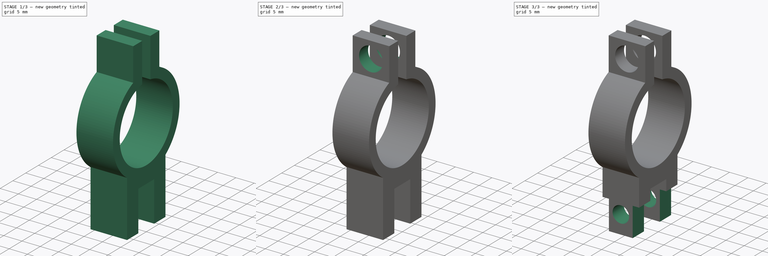
[diagram: build sequence overview — one tinted view per stage of 3, left to right]
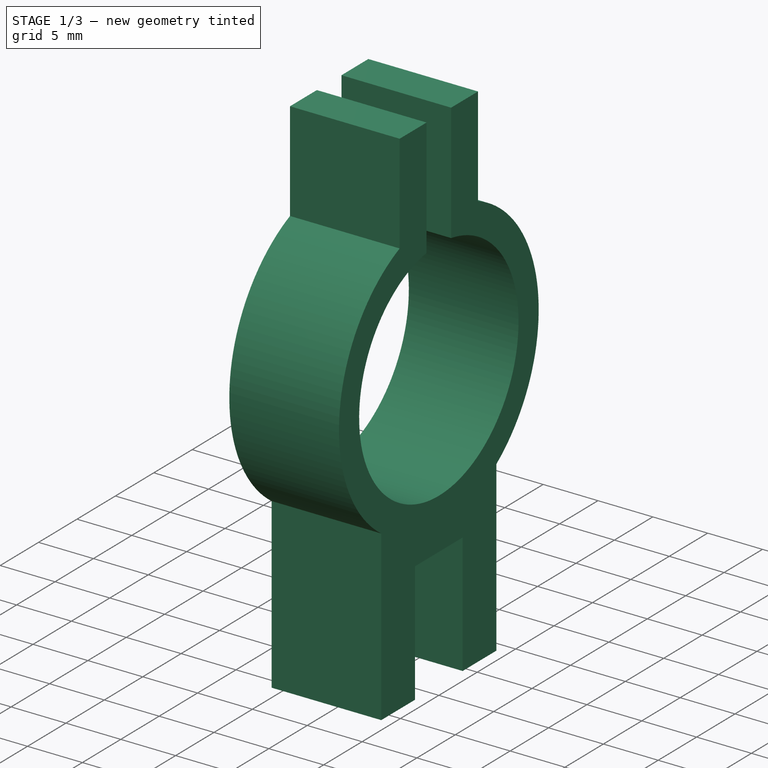
[diagram: stage 1 of 3 — iso view after this stage's code; geometry added in this stage tinted green]
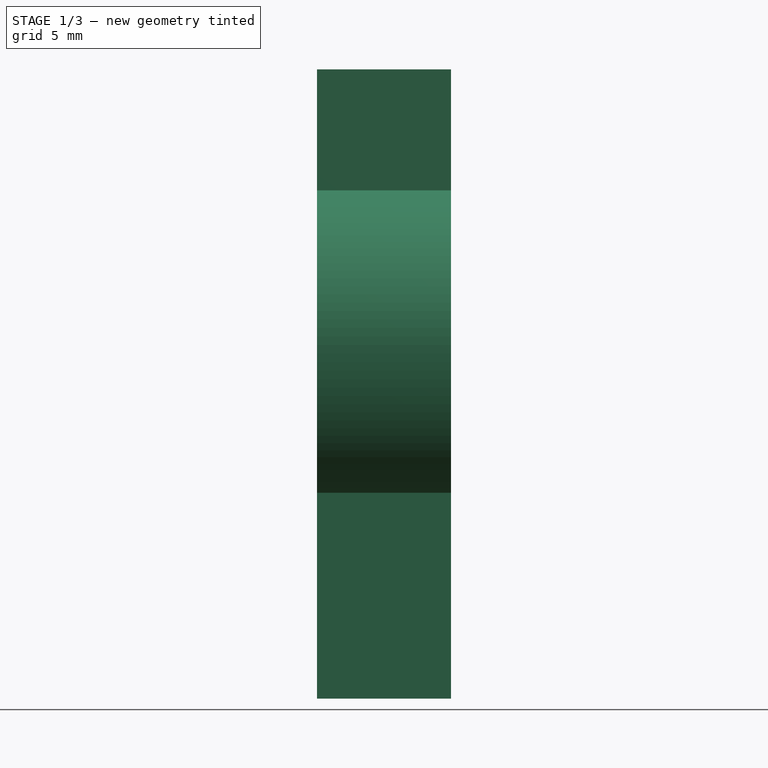
[diagram: stage 1 of 3 — front view after this stage's code; geometry added in this stage tinted green]
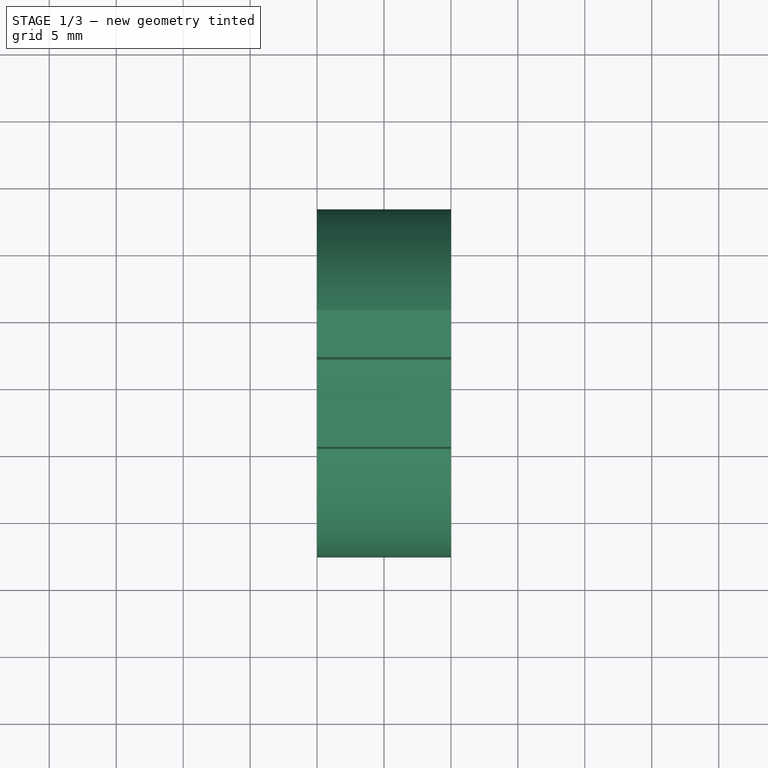
[diagram: stage 1 of 3 — top view after this stage's code; geometry added in this stage tinted green]
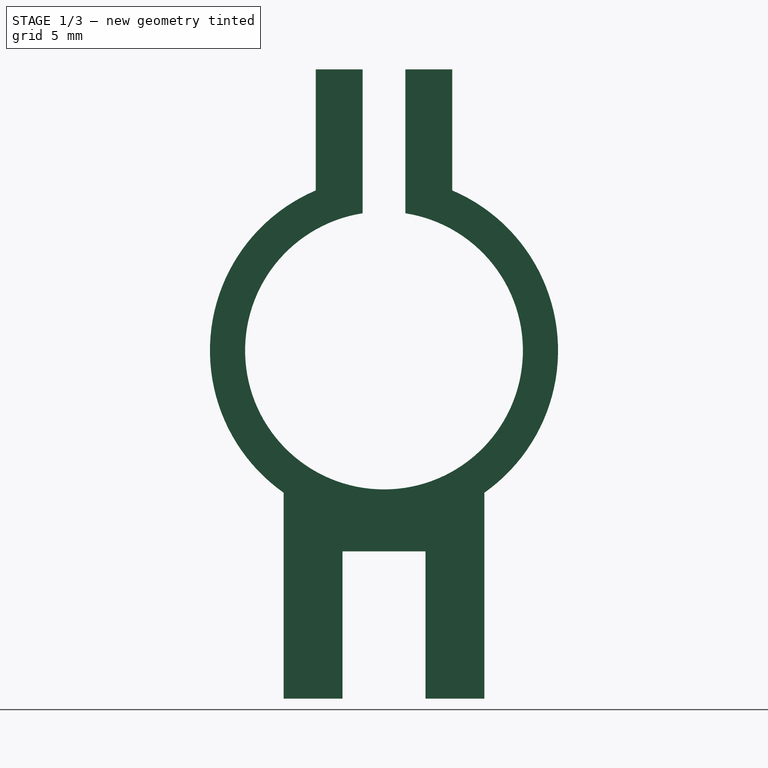
[diagram: stage 1 of 3 — right view after this stage's code; geometry added in this stage tinted green]
FCSTD DOCUMENT  (FreeCAD 0.21R33771 (Git))
Label: Syring holder V1
License: All rights reserved
LicenseURL: https://en.wikipedia.org/wiki/All_rights_reserved
objects: Sketcher::SketchObject×5, PartDesign::Pocket×4, PartDesign::Pad×1, PartDesign::Body×1
note: 16 computed .brp shape members not serialized (recipe doc carries the construction recipe); baked Part::Feature solids carry a one-line shape summary decoded from their .brp

FEATURE [Sketcher::SketchObject] Sketch
  FullyConstrained = true
  Placement = pos=(0,0,0) rot=(0.57735,0.57735,0.57735;2.0944rad)
  sketch-geometry (17):
    g0: ArcOfCircle CenterX=0 CenterY=0 CenterZ=0 NormalX=0 NormalY=0 NormalZ=1 AngleXU=0 Radius=10.375 StartAngle=1.72563 EndAngle=7.69915
    g1: ArcOfCircle CenterX=0 CenterY=0 CenterZ=0 NormalX=0 NormalY=0 NormalZ=1 AngleXU=0 Radius=13 StartAngle=5.32735 EndAngle=7.45084
    g2: LineSegment StartX=0 StartY=-10.375 StartZ=0 EndX=0 EndY=-20.625 EndZ=0
    g3: LineSegment StartX=-7.5 StartY=-25.9984 StartZ=0 EndX=-7.5 EndY=-10.6184 EndZ=0
    g4: LineSegment StartX=7.5 StartY=-25.9984 StartZ=0 EndX=7.5 EndY=-10.6184 EndZ=0
    g5: LineSegment StartX=-7.5 StartY=-25.9984 StartZ=0 EndX=7.5 EndY=-25.9984 EndZ=0
    g6: LineSegment StartX=0 StartY=0 StartZ=0 EndX=0 EndY=13 EndZ=0
    g7: LineSegment StartX=0 StartY=20.9978 StartZ=0 EndX=-1.6 EndY=20.9978 EndZ=0
    g8: LineSegment StartX=0 StartY=12.9978 StartZ=0 EndX=0 EndY=20.9978 EndZ=0
    g9: LineSegment StartX=0 StartY=20.9978 StartZ=0 EndX=1.6 EndY=20.9978 EndZ=0
    g10: LineSegment StartX=-1.6 StartY=20.9978 StartZ=0 EndX=-5.1 EndY=20.9978 EndZ=0
    g11: LineSegment StartX=-5.1 StartY=20.9978 StartZ=0 EndX=-5.1 EndY=11.9578 EndZ=0
    g12: LineSegment StartX=1.6 StartY=20.9978 StartZ=0 EndX=5.1 EndY=20.9978 EndZ=0
    g13: LineSegment StartX=5.1 StartY=20.9978 StartZ=0 EndX=5.1 EndY=11.9578 EndZ=0
    g14: ArcOfCircle CenterX=0 CenterY=0 CenterZ=0 NormalX=0 NormalY=0 NormalZ=1 AngleXU=0 Radius=13 StartAngle=1.97394 EndAngle=4.09743
    g15: LineSegment StartX=-1.6 StartY=20.9978 StartZ=0 EndX=-1.6 EndY=10.2509 EndZ=0
    g16: LineSegment StartX=1.6 StartY=20.9978 StartZ=0 EndX=1.6 EndY=10.2509 EndZ=0
  constraints (52):
    c: Coincident(g0,g-1)
    c: Coincident(g1,g0)
    c: PointOnObject(g2,g-2)
    c: Distance(g4) = 15.38
    c: Coincident(g1,g4)
    c: Coincident(g14,g3)
    c: PointOnObject(g2,g0)
    c: Coincident(g5,g3)
    c: Coincident(g5,g4)
    c: Horizontal(g5)
    c: Perpendicular(g5,g4)
    c: Perpendicular(g5,g3)
    c: Equal(g3,g4)
    c: Radius(g1) = 13
    c: Diameter(g0) = 20.75
    c: Distance(g5) = 15
    c: Vertical(g2)
    c: Distance(g2) = 10.25
    c: Coincident(g6,g0)
    c: PointOnObject(g7,g-2)
    c: Coincident(g8,g7)
    c: Horizontal(g7)
    c: Vertical(g8)
    c: Distance(g7) = 1.6
    c: Distance(g8) = 8
    c: Distance(g9) = 1.6
    c: Horizontal(g9)
    c: Coincident(g9,g7)
    c: Coincident(g7,g10)
    c: Horizontal(g10)
    c: Coincident(g10,g11)
    c: Vertical(g11)
    c: PointOnObject(g11,g1)
    c: Distance(g11) = 9.04
    c: Coincident(g12,g13)
    c: Distance(g13) = 9.04
    c: Perpendicular(g13,g12)
    c: Coincident(g12,g9)
    c: PointOnObject(g6,g1)
    c: Distance(g10) = 3.5
    c: Equal(g1,g14)
    c: Coincident(g1,g14)
    c: PointOnObject(g14,g11)
    c: Coincident(g1,g13)
    c: Block(g6)
    c: Distance(g12) = 3.5
    c: Coincident(g15,g10)
    c: Vertical(g15)
    c: Coincident(g16,g12)
    c: Vertical(g16)
    c: Coincident(g0,g16)
    c: Coincident(g0,g15)
FEATURE [PartDesign::Pad] Pad
  Direction = (1,0,0)
  Length = 10
  Length2 = 10
  Placement = pos=(0,0,0) rot=(0.57735,0.57735,0.57735;2.0944rad)
  Profile = -> Sketch
  ReferenceAxis = -> Sketch [N_Axis]
  Type = 0
FEATURE [Sketcher::SketchObject] Sketch003
  ExternalGeometry = -> [Sketch]
  FullyConstrained = true
  MapMode = 5
  Placement = pos=(0,0,0) rot=(0.57735,0.57735,-0.57735;4.18879rad)
  sketch-geometry (6):
    g0: LineSegment StartX=0 StartY=25.9984 StartZ=0 EndX=-3.1 EndY=25.9984 EndZ=0
    g1: LineSegment StartX=-3.1 StartY=25.9984 StartZ=0 EndX=-3.1 EndY=14.9984 EndZ=0
    g2: LineSegment StartX=-3.1 StartY=14.9984 StartZ=0 EndX=0 EndY=14.9984 EndZ=0
    g3: LineSegment StartX=0 StartY=25.9984 StartZ=0 EndX=3.1 EndY=25.9984 EndZ=0
    g4: LineSegment StartX=3.1 StartY=25.9984 StartZ=0 EndX=3.1 EndY=14.9984 EndZ=0
    g5: LineSegment StartX=3.1 StartY=14.9984 StartZ=0 EndX=0 EndY=14.9984 EndZ=0
  constraints (18):
    c: Coincident(g0,g1)
    c: Coincident(g1,g2)
    c: Horizontal(g0)
    c: Horizontal(g2)
    c: Vertical(g1)
    c: PointOnObject(g0,g-2)
    c: Distance(g1) = 11
    c: Distance(g0) = 3.1
    c: Coincident(g3,g4)
    c: Coincident(g4,g5)
    c: Horizontal(g3)
    c: Horizontal(g5)
    c: Vertical(g4)
    c: Distance(g3) = 3.1
    c: Coincident(g3,g0)
    c: Coincident(g5,g2)
    c: PointOnObject(g2,g-2)
    c: PointOnObject(g0,g-3)
FEATURE [PartDesign::Pocket] Pocket
  BaseFeature = -> Pad
  Direction = (1,-4e-16,0)
  Length = 10
  Length2 = 5
  Placement = pos=(0,0,0) rot=(0.57735,0.57735,0.57735;2.0944rad)
  Profile = -> Sketch003
  ReferenceAxis = -> Sketch003 [N_Axis]
  Type = 0
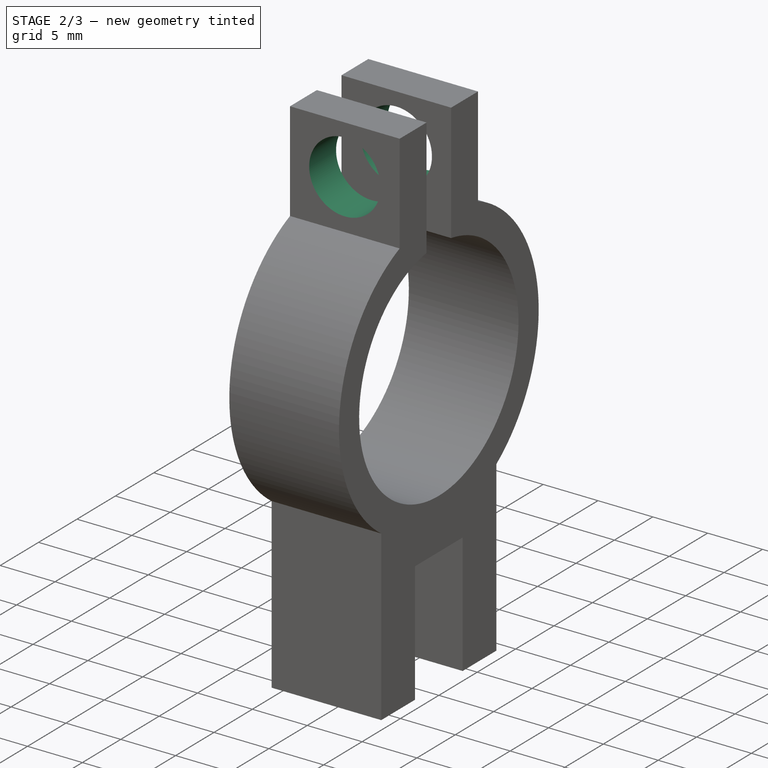
[diagram: stage 2 of 3 — iso view after this stage's code; geometry added in this stage tinted green]
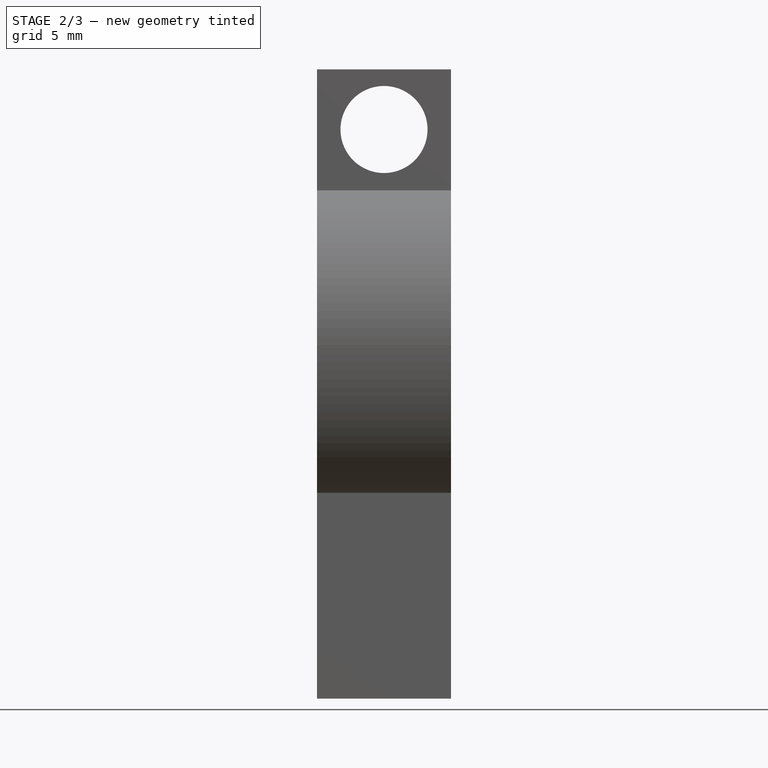
[diagram: stage 2 of 3 — front view after this stage's code; geometry added in this stage tinted green]
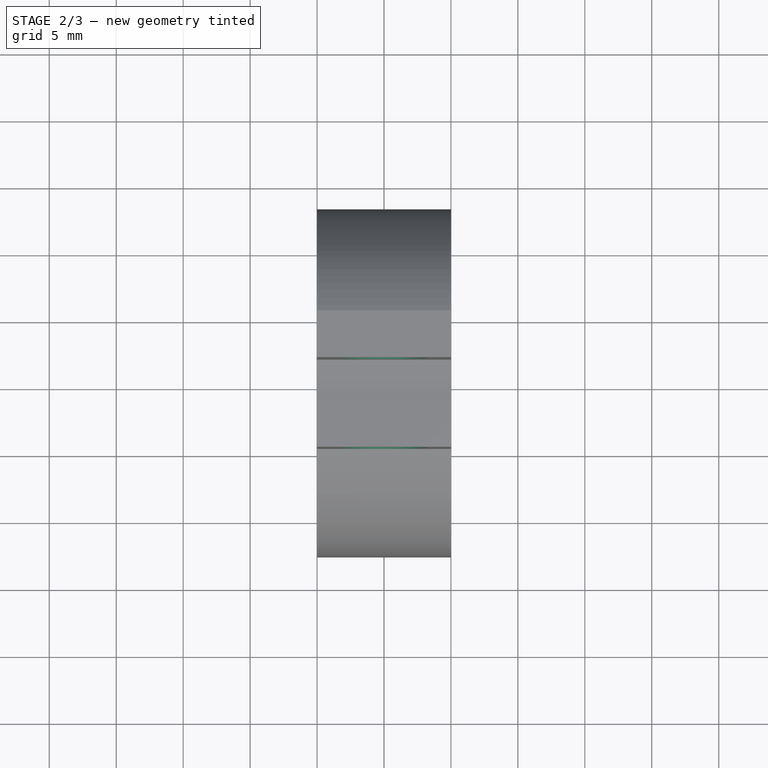
[diagram: stage 2 of 3 — top view after this stage's code; geometry added in this stage tinted green]
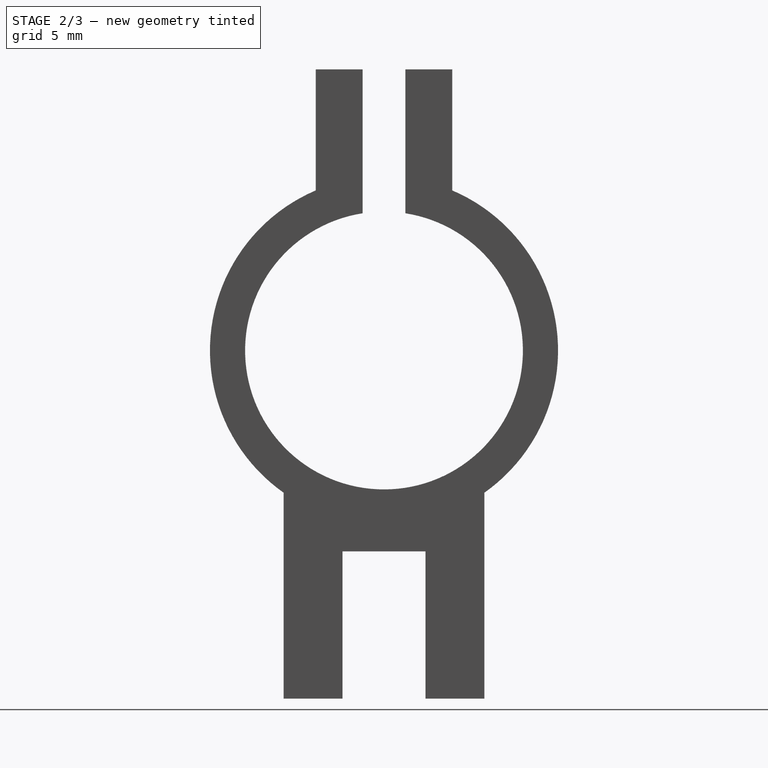
[diagram: stage 2 of 3 — right view after this stage's code; geometry added in this stage tinted green]
FEATURE [Sketcher::SketchObject] Sketch004
  ExternalGeometry = -> [Pocket]
  FullyConstrained = true
  MapMode = 5
  Placement = pos=(1.1e-15,5.1,-1e-15) rot=(0.57735,0.57735,0.57735;4.18879rad)
  Support = -> [Pocket]
  sketch-geometry (3):
    g0: LineSegment StartX=20.9978 StartY=10 StartZ=0 EndX=16.5078 EndY=10 EndZ=0
    g1: LineSegment StartX=16.5078 StartY=10 StartZ=0 EndX=16.5078 EndY=5 EndZ=0
    g2: Circle CenterX=16.5078 CenterY=5 CenterZ=0 NormalX=0 NormalY=0 NormalZ=1 AngleXU=0 Radius=3.25
  constraints (8):
    c: Coincident(g0,g-4)
    c: Distance(g0) = 4.49
    c: PointOnObject(g0,g-3)
    c: Coincident(g1,g0)
    c: Vertical(g1)
    c: Distance(g1) = 5
    c: Coincident(g2,g1)
    c: Diameter(g2) = 6.5
FEATURE [PartDesign::Pocket] Pocket002
  BaseFeature = -> Pocket
  Direction = (-1e-16,-1,3e-16)
  Length = 15
  Length2 = 5
  Placement = pos=(0,0,0) rot=(0.57735,0.57735,0.57735;2.0944rad)
  Profile = -> Sketch004
  ReferenceAxis = -> Sketch004 [N_Axis]
  Type = 0
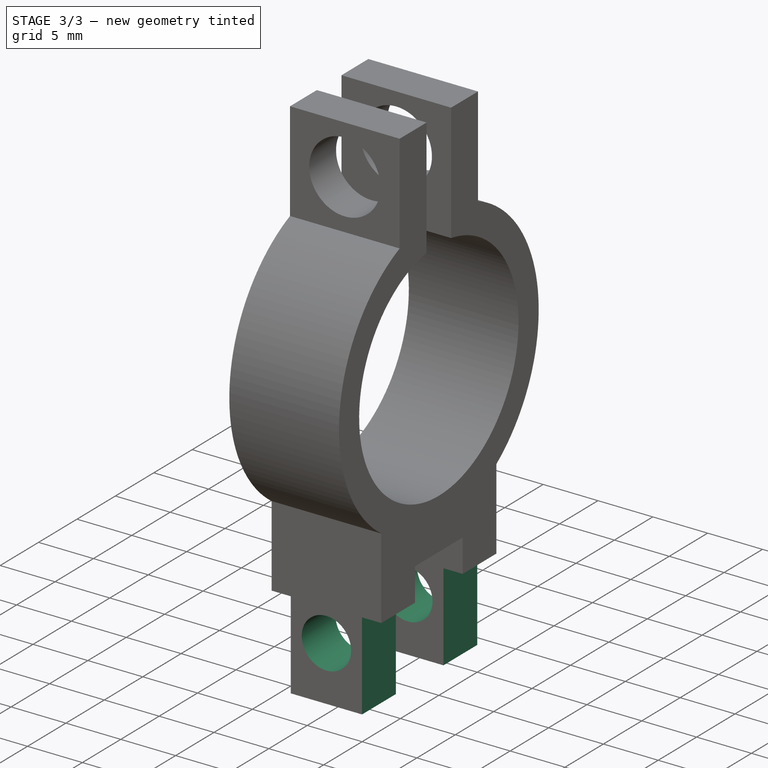
[diagram: stage 3 of 3 — iso view after this stage's code; geometry added in this stage tinted green]
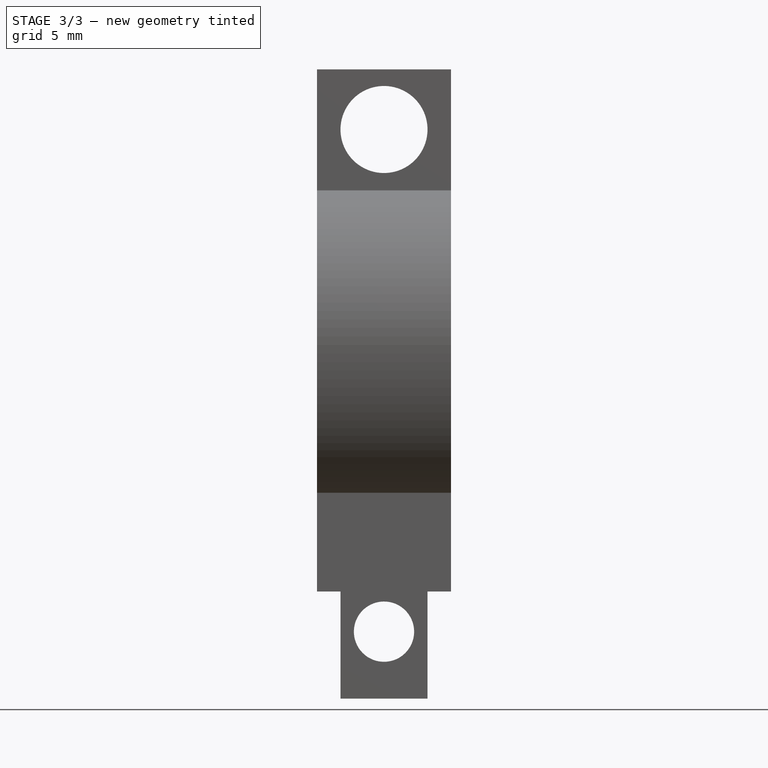
[diagram: stage 3 of 3 — front view after this stage's code; geometry added in this stage tinted green]
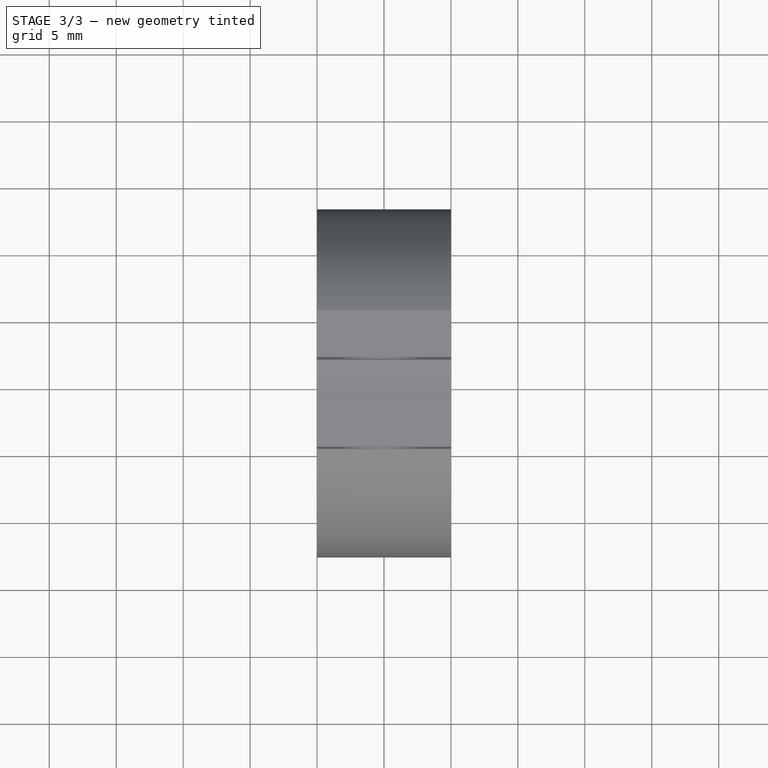
[diagram: stage 3 of 3 — top view after this stage's code; geometry added in this stage tinted green]
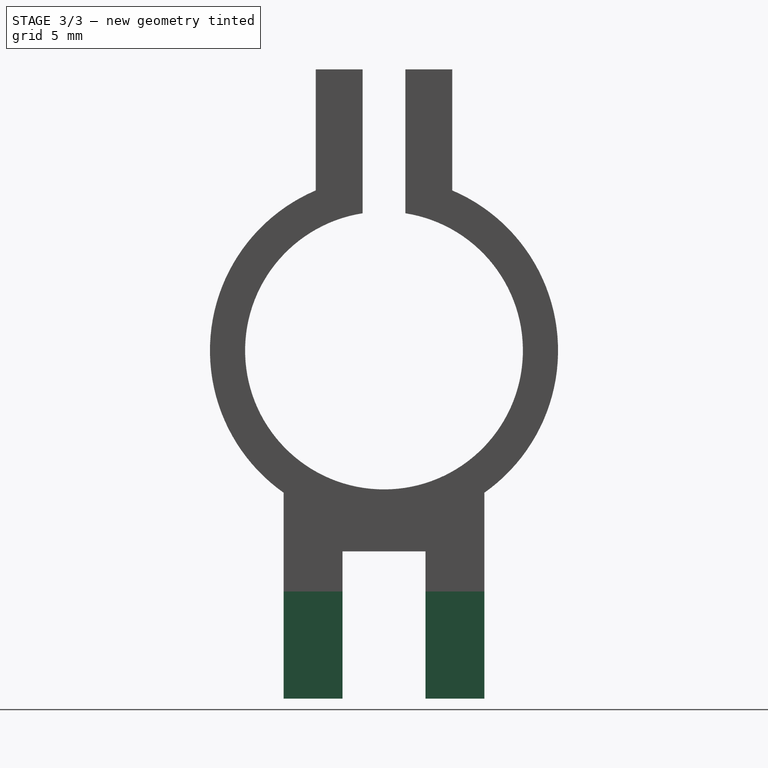
[diagram: stage 3 of 3 — right view after this stage's code; geometry added in this stage tinted green]
FEATURE [Sketcher::SketchObject] Sketch005
  ExternalGeometry = -> [Pocket002]
  FullyConstrained = true
  MapMode = 5
  Placement = pos=(1.7e-15,7.5,-5e-16) rot=(0.57735,0.57735,0.57735;4.18879rad)
  Support = -> [Pocket002]
  sketch-geometry (5):
    g0: LineSegment StartX=-25.9984 StartY=10 StartZ=0 EndX=-20.9984 EndY=10 EndZ=0
    g1: LineSegment StartX=-20.9984 StartY=10 StartZ=0 EndX=-20.9984 EndY=5 EndZ=0
    g2: LineSegment StartX=-20.9984 StartY=5 StartZ=0 EndX=-25.9984 EndY=5 EndZ=0
    g3: LineSegment StartX=-25.9984 StartY=5 StartZ=0 EndX=-25.9984 EndY=10 EndZ=0
    g4: Circle CenterX=-20.9984 CenterY=5 CenterZ=0 NormalX=0 NormalY=0 NormalZ=1 AngleXU=0 Radius=2.25
  constraints (15):
    c: Coincident(g0,g1)
    c: Coincident(g1,g2)
    c: Coincident(g2,g3)
    c: Coincident(g3,g0)
    c: Horizontal(g0)
    c: Horizontal(g2)
    c: Vertical(g1)
    c: Vertical(g3)
    c: Coincident(g0,g-4)
    c: Distance(g-3) = 15.38
    c: Distance(g-4) = 10
    c: Distance(g2) = 5
    c: Distance(g1) = 5
    c: Coincident(g4,g1)
    c: Diameter(g4) = 4.5
FEATURE [PartDesign::Pocket] Pocket003
  BaseFeature = -> Pocket002
  Direction = (-1e-16,-1,3e-16)
  Length = 15
  Length2 = 5
  Placement = pos=(0,0,0) rot=(0.57735,0.57735,0.57735;2.0944rad)
  Profile = -> Sketch005
  ReferenceAxis = -> Sketch005 [N_Axis]
  Type = 0
FEATURE [Sketcher::SketchObject] Sketch006
  ExternalGeometry = -> [Pocket003]
  FullyConstrained = true
  MapMode = 5
  Placement = pos=(1.7e-15,7.5,-5e-16) rot=(0.57735,0.57735,0.57735;4.18879rad)
  Support = -> [Pocket003]
  sketch-geometry (8):
    g0: LineSegment StartX=-25.9984 StartY=10 StartZ=0 EndX=-17.9984 EndY=10 EndZ=0
    g1: LineSegment StartX=-17.9984 StartY=10 StartZ=0 EndX=-17.9984 EndY=8.25 EndZ=0
    g2: LineSegment StartX=-17.9984 StartY=8.25 StartZ=0 EndX=-25.9984 EndY=8.25 EndZ=0
    g3: LineSegment StartX=-25.9984 StartY=8.25 StartZ=0 EndX=-25.9984 EndY=10 EndZ=0
    g4: LineSegment StartX=-25.9984 StartY=-4.4e-15 StartZ=0 EndX=-17.9984 EndY=-4.4e-15 EndZ=0
    g5: LineSegment StartX=-17.9984 StartY=-4.4e-15 StartZ=0 EndX=-17.9984 EndY=1.75 EndZ=0
    g6: LineSegment StartX=-17.9984 StartY=1.75 StartZ=0 EndX=-25.9984 EndY=1.75 EndZ=0
    g7: LineSegment StartX=-25.9984 StartY=1.75 StartZ=0 EndX=-25.9984 EndY=-4.4e-15 EndZ=0
  constraints (22):
    c: Coincident(g0,g1)
    c: Coincident(g1,g2)
    c: Coincident(g2,g3)
    c: Coincident(g3,g0)
    c: Horizontal(g0)
    c: Horizontal(g2)
    c: Vertical(g1)
    c: Vertical(g3)
    c: Coincident(g0,g-4)
    c: Coincident(g4,g5)
    c: Coincident(g5,g6)
    c: Coincident(g6,g7)
    c: Coincident(g7,g4)
    c: Horizontal(g4)
    c: Horizontal(g6)
    c: Vertical(g5)
    c: Vertical(g7)
    c: Coincident(g4,g-5)
    c: Vertical(g5,g1)
    c: Distance(g1) = 1.75
    c: Equal(g1,g5)
    c: Distance(g6) = 8
FEATURE [PartDesign::Pocket] Pocket004
  BaseFeature = -> Pocket003
  Direction = (-1e-16,-1,-1e-16)
  Length = 15
  Length2 = 5
  Placement = pos=(0,0,0) rot=(0.57735,0.57735,0.57735;2.0944rad)
  Profile = -> Sketch006
  ReferenceAxis = -> Sketch006 [N_Axis]
  Type = 0
FEATURE [PartDesign::Body] Body
  Group = -> [Sketch,Pad,Sketch003,Pocket,Sketch004,Pocket002,Sketch005,Pocket003,Sketch006,Pocket004]
  Origin = -> Origin
  Tip = -> Pocket004
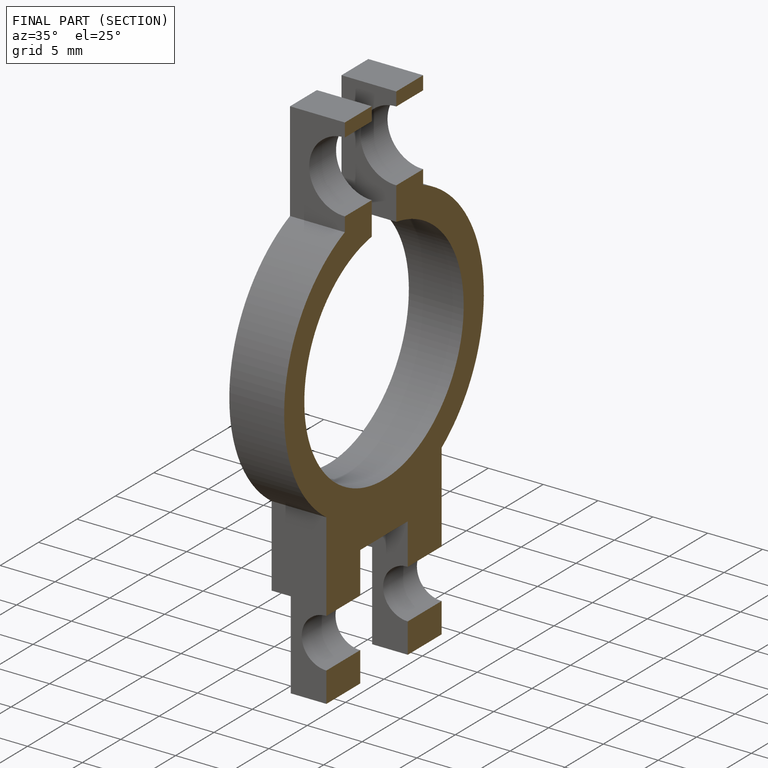
[diagram: finished part — half-section view (interior)]
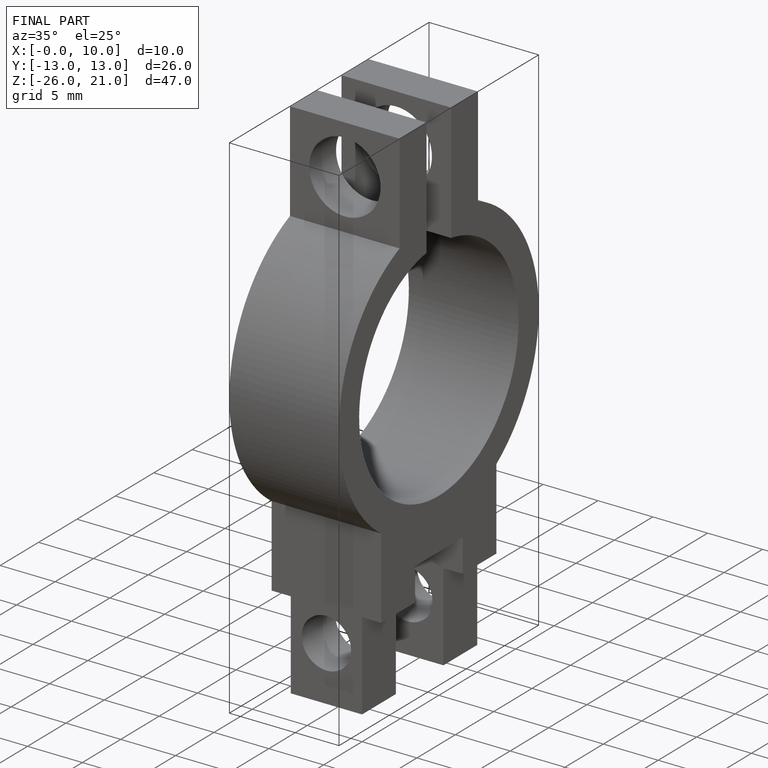
[diagram: finished part — iso view with bounding-box wireframe]
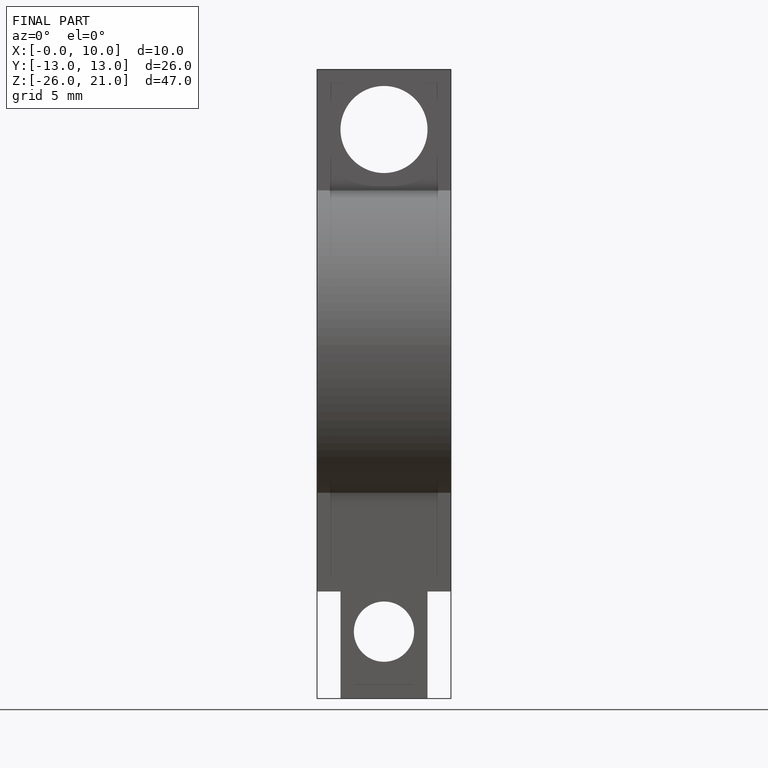
[diagram: finished part — front view with bounding-box wireframe]
